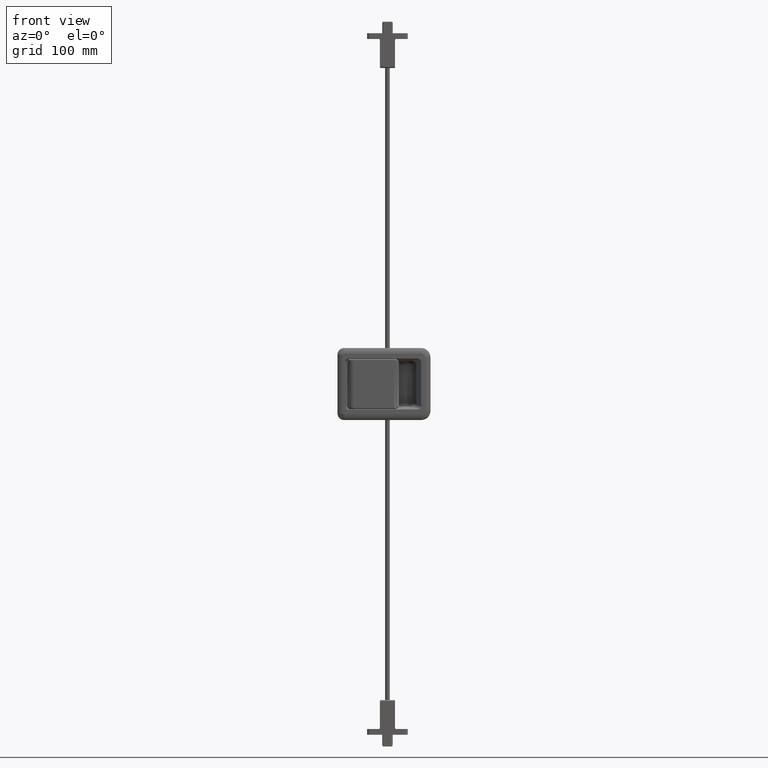
[diagram: clean part render]
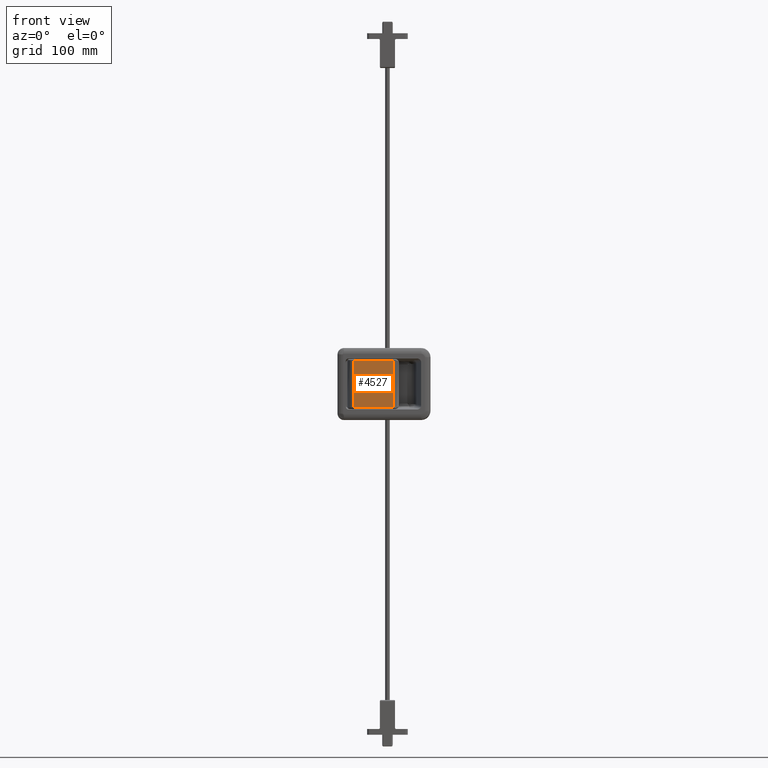
[diagram: same view with one face highlighted and labeled with its STEP entity id]
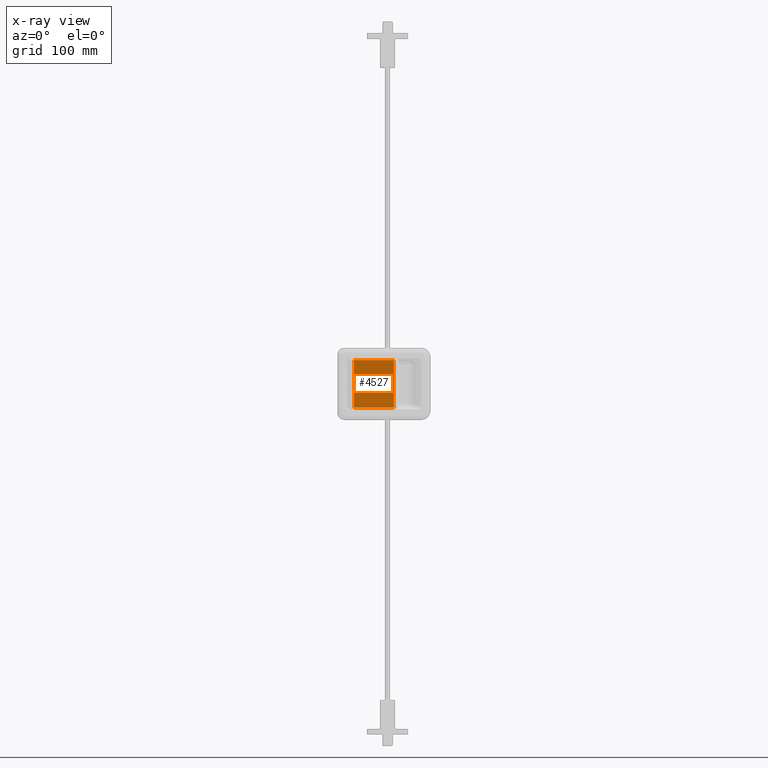
[diagram: x-ray of the same camera — body ghosted, the highlighted face saturated]
A machine part, front view. The second image highlights one B-rep face of the part: STEP entity #4527.
The next image is the same camera in x-ray: the body ghosted, the highlighted face saturated — about 0% of this face is hidden behind the body in this view.
In plain terms, the highlighted face is a freeform B-spline surface patch.
Its self-contained STEP definition (entity closure, byte-faithful):
#3060=CARTESIAN_POINT('',(0.0,-6.250000000000000,-20.499999999981650));
#3061=VERTEX_POINT('',#3060);
#3111=CARTESIAN_POINT('',(34.500000000000000,-6.250000000000000,-20.499999999981650));
#3112=VERTEX_POINT('',#3111);
#3122=CARTESIAN_POINT('',(0.0,-6.250000000000000,-20.499999999981650));
#3123=CARTESIAN_POINT('',(34.500000000000000,-6.250000000000000,-20.499999999981650));
#3124=QUASI_UNIFORM_CURVE('',1,(#3122,#3123),.UNSPECIFIED.,.F.,.U.);
#3125=EDGE_CURVE('',#3061,#3112,#3124,.T.);
#3445=CARTESIAN_POINT('',(0.0,-6.250000000000000,20.500000000018300));
#3446=VERTEX_POINT('',#3445);
#4009=CARTESIAN_POINT('',(34.500000000000000,-6.250000000000000,20.500000000018300));
#4010=VERTEX_POINT('',#4009);
#4155=CARTESIAN_POINT('',(34.500000000000000,-6.250000000000000,20.500000000018300));
#4156=CARTESIAN_POINT('',(0.0,-6.250000000000000,20.500000000018300));
#4157=QUASI_UNIFORM_CURVE('',1,(#4155,#4156),.UNSPECIFIED.,.F.,.U.);
#4158=EDGE_CURVE('',#4010,#3446,#4157,.T.);
#4353=CARTESIAN_POINT('',(34.500000000000000,-6.250000000000000,-20.499999999981650));
#4354=CARTESIAN_POINT('',(34.500000000000000,-6.250000000000000,20.500000000018300));
#4355=QUASI_UNIFORM_CURVE('',1,(#4353,#4354),.UNSPECIFIED.,.F.,.U.);
#4356=EDGE_CURVE('',#3112,#4010,#4355,.T.);
#4512=CARTESIAN_POINT('',(36.223274933132309,-6.250000000000000,-22.547949920515698));
#4513=CARTESIAN_POINT('',(-1.723275858494415,-6.250000000000000,-22.547949920515698));
#4514=CARTESIAN_POINT('',(36.223274933132309,-6.250000000000000,22.547951020258040));
#4515=CARTESIAN_POINT('',(-1.723275858494415,-6.250000000000000,22.547951020258040));
#4516=B_SPLINE_SURFACE_WITH_KNOTS('',1,1,((#4512,#4514),(#4513,#4515)),.UNSPECIFIED.,.F.,.F.,.U.,(2,2),(2,2),(0.0,37.946550791626727),(0.0,45.095900940773753),.UNSPECIFIED.);
#4517=CARTESIAN_POINT('',(0.0,-6.250000000000000,20.500000000018300));
#4518=CARTESIAN_POINT('',(0.0,-6.250000000000000,-20.499999999981650));
#4519=QUASI_UNIFORM_CURVE('',1,(#4517,#4518),.UNSPECIFIED.,.F.,.U.);
#4520=EDGE_CURVE('',#3446,#3061,#4519,.T.);
#4521=ORIENTED_EDGE('',*,*,#4520,.T.);
#4522=ORIENTED_EDGE('',*,*,#3125,.T.);
#4523=ORIENTED_EDGE('',*,*,#4356,.T.);
#4524=ORIENTED_EDGE('',*,*,#4158,.T.);
#4525=EDGE_LOOP('',(#4521,#4522,#4523,#4524));
#4526=FACE_OUTER_BOUND('',#4525,.T.);
#4527=ADVANCED_FACE('',(#4526),#4516,.F.);